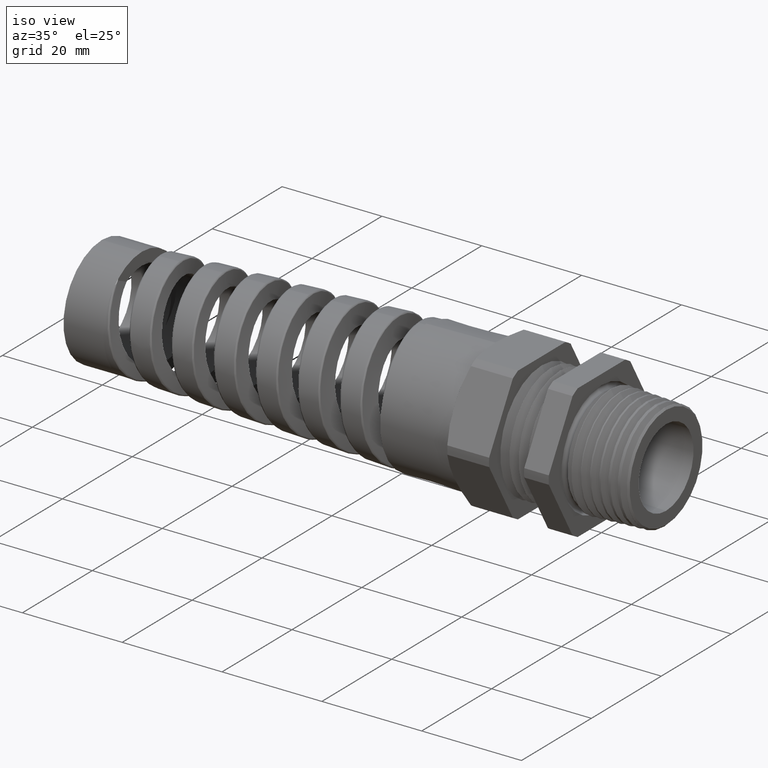
[diagram: clean part render]
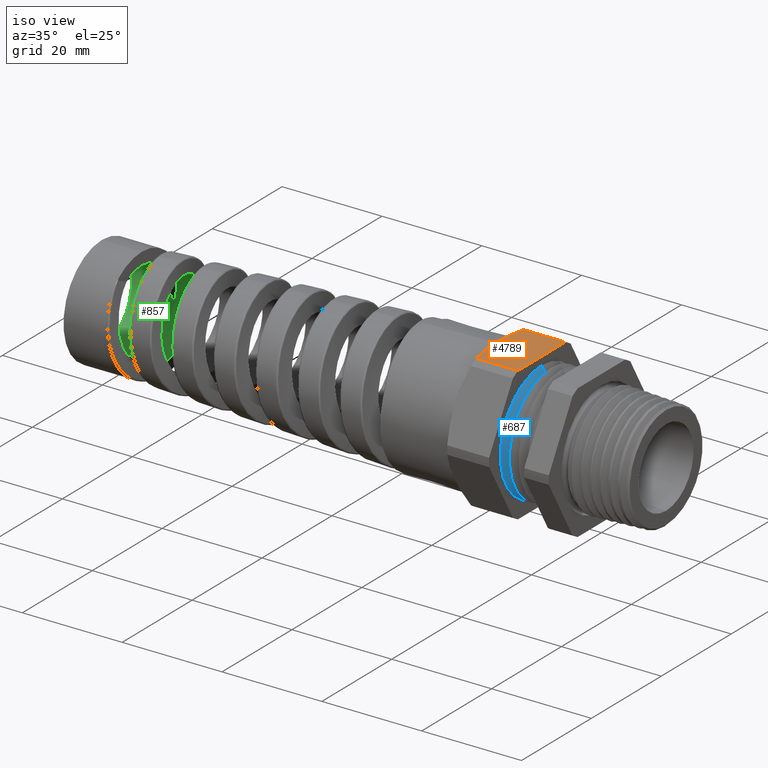
[diagram: same view with three faces highlighted in distinct colors, each labeled with its STEP entity id]
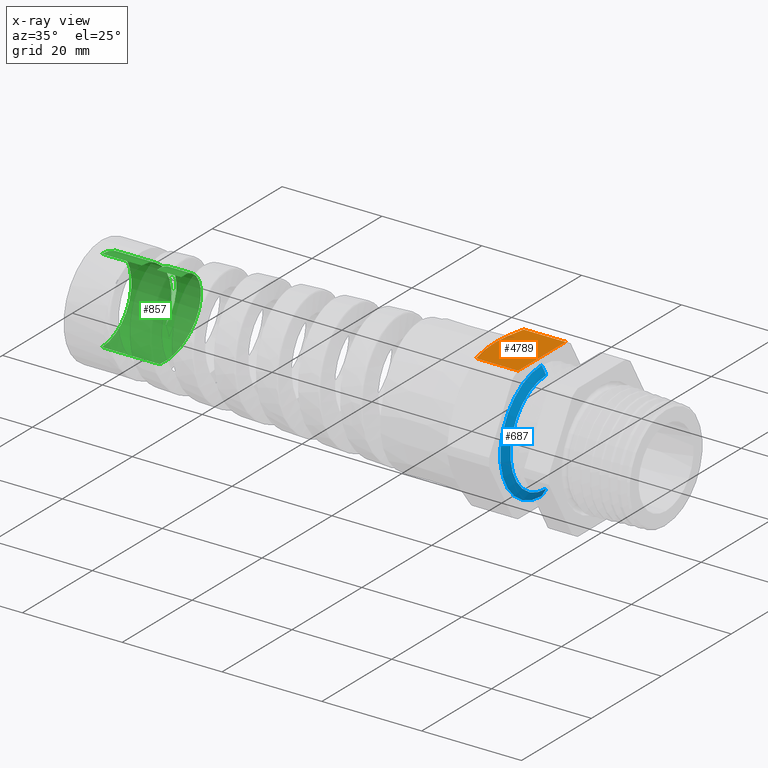
[diagram: x-ray of the same camera — body ghosted, the three highlighted faces saturated]
A machine part, iso view with three faces highlighted in distinct colors.
The next image is the same camera in x-ray (body ghosted, the three faces saturated) — at least one of them is partly hidden behind the body in this view.
Their STEP definitions:

[orange] entity #4789 — the highlighted planar face has unit normal (0, 0, 1).
#161 = CARTESIAN_POINT ( 'NONE',  ( -0.8375000000000000200, 0.0000000000000000000, 0.5299999999999999200 ) ) ;
#162 = CARTESIAN_POINT ( 'NONE',  ( -0.8375000000000001300, 0.02248601894749255700, 0.5300000000000001400 ) ) ;
#163 = CARTESIAN_POINT ( 'NONE',  ( -0.8366704751326139400, 0.04502350460591595500, 0.5300000000000000300 ) ) ;
#164 = CARTESIAN_POINT ( 'NONE',  ( -0.8333698439661926200, 0.09020032554817343500, 0.5300000000000000300 ) ) ;
#410 = ORIENTED_EDGE ( 'NONE', *, *, #411, .T. ) ;
#411 = EDGE_CURVE ( 'NONE', #4988, #1260, #2856, .T. ) ;
#412 = ORIENTED_EDGE ( 'NONE', *, *, #413, .T. ) ;
#413 = EDGE_CURVE ( 'NONE', #1260, #4813, #2900, .T. ) ;
#414 = ORIENTED_EDGE ( 'NONE', *, *, #5002, .T. ) ;
#415 = ORIENTED_EDGE ( 'NONE', *, *, #416, .T. ) ;
#416 = EDGE_CURVE ( 'NONE', #4999, #4987, #2899, .T. ) ;
#1260 = VERTEX_POINT ( 'NONE', #11885 ) ;
#2849 = CARTESIAN_POINT ( 'NONE',  ( -0.8308887136721119200, 0.1128690294926516700, 0.5300000000000001400 ) ) ;
#2850 = CARTESIAN_POINT ( 'NONE',  ( -0.8213051833091242800, 0.1800017858002748400, 0.5300000000000000300 ) ) ;
#2851 = CARTESIAN_POINT ( 'NONE',  ( -0.8120576945526086800, 0.2239487460126226800, 0.5300000000000000300 ) ) ;
#2852 = CARTESIAN_POINT ( 'NONE',  ( -0.8007805228795398200, 0.2673218285138722600, 0.5299999999999999200 ) ) ;
#2856 = B_SPLINE_CURVE_WITH_KNOTS ( 'NONE', 3,
 ( #2852, #2851, #2850, #2849, #164, #163, #162, #161 ),
 .UNSPECIFIED., .F., .F.,
 ( 4, 2, 2, 4 ),
 ( 0.007282999526850547600, 0.01069714918960657000, 0.01240422402098458100, 0.01411129885236259200 ),
 .UNSPECIFIED. ) ;
#2888 = DIRECTION ( 'NONE',  ( 0.0000000000000000000, 1.000000000000000000, 0.0000000000000000000 ) ) ;
#2889 = VECTOR ( 'NONE', #2888, 39.37007874015748100 ) ;
#2890 = CARTESIAN_POINT ( 'NONE',  ( -0.8007805228795398200, -0.2673218285138724300, 0.5299999999999999200 ) ) ;
#2891 = CARTESIAN_POINT ( 'NONE',  ( -0.8064647693670959900, -0.2454596720255573200, 0.5299999999999998000 ) ) ;
#2892 = CARTESIAN_POINT ( 'NONE',  ( -0.8116548691931352300, -0.2233522006217770200, 0.5299999999999999200 ) ) ;
#2893 = CARTESIAN_POINT ( 'NONE',  ( -0.8207557576897001100, -0.1789257074002588400, 0.5299999999999999200 ) ) ;
#2894 = CARTESIAN_POINT ( 'NONE',  ( -0.8246545637602134000, -0.1566720308095854700, 0.5299999999999999200 ) ) ;
#2895 = CARTESIAN_POINT ( 'NONE',  ( -0.8341465868220292500, -0.08977423242168816600, 0.5299999999999999200 ) ) ;
#2896 = CARTESIAN_POINT ( 'NONE',  ( -0.8375000000000000200, -0.04499114512754565100, 0.5300000000000000300 ) ) ;
#2897 = CARTESIAN_POINT ( 'NONE',  ( -0.8375000000000000200, 0.0000000000000000000, 0.5299999999999999200 ) ) ;
#2898 = CARTESIAN_POINT ( 'NONE',  ( -0.4708333333333333300, 0.4664000000000000400, 0.5299999999999999200 ) ) ;
#2899 = LINE ( 'NONE', #2898, #2889 ) ;
#2900 = B_SPLINE_CURVE_WITH_KNOTS ( 'NONE', 3,
 ( #2897, #2896, #2895, #2894, #2893, #2892, #2891, #2890 ),
 .UNSPECIFIED., .F., .F.,
 ( 4, 2, 2, 4 ),
 ( 0.01411129885236259200, 0.01752689908206323700, 0.01923469919691355900, 0.02094249931176388200 ),
 .UNSPECIFIED. ) ;
#4781 = EDGE_LOOP ( 'NONE', ( #4788, #410, #412, #414, #415 ) ) ;
#4788 = ORIENTED_EDGE ( 'NONE', *, *, #4994, .F. ) ;
#4789 = ADVANCED_FACE ( 'NONE', ( #12896 ), #12893, .T. ) ;
#4813 = VERTEX_POINT ( 'NONE', #12922 ) ;
#4987 = VERTEX_POINT ( 'NONE', #13014 ) ;
#4988 = VERTEX_POINT ( 'NONE', #13013 ) ;
#4994 = EDGE_CURVE ( 'NONE', #4988, #4987, #13011, .T. ) ;
#4999 = VERTEX_POINT ( 'NONE', #13052 ) ;
#5002 = EDGE_CURVE ( 'NONE', #4813, #4999, #13051, .T. ) ;
#11885 = CARTESIAN_POINT ( 'NONE',  ( -0.8375000000000000200, 0.0000000000000000000, 0.5299999999999999200 ) ) ;
#12882 = DIRECTION ( 'NONE',  ( 1.000000000000000000, 0.0000000000000000000, 0.0000000000000000000 ) ) ;
#12883 = DIRECTION ( 'NONE',  ( 0.0000000000000000000, 0.0000000000000000000, 1.000000000000000000 ) ) ;
#12892 = CARTESIAN_POINT ( 'NONE',  ( -2.533243884661831900, 0.2673218285138724300, 0.5299999999999999200 ) ) ;
#12893 = PLANE ( 'NONE',  #12895 ) ;
#12895 = AXIS2_PLACEMENT_3D ( 'NONE', #12892, #12883, #12882 ) ;
#12896 = FACE_OUTER_BOUND ( 'NONE', #4781, .T. ) ;
#12922 = CARTESIAN_POINT ( 'NONE',  ( -0.8007805228795398200, -0.2673218285138724300, 0.5299999999999999200 ) ) ;
#13003 = DIRECTION ( 'NONE',  ( 1.000000000000000000, 0.0000000000000000000, 0.0000000000000000000 ) ) ;
#13004 = VECTOR ( 'NONE', #13003, 39.37007874015748100 ) ;
#13005 = CARTESIAN_POINT ( 'NONE',  ( -2.533243884661831900, 0.2673218285138722600, 0.5299999999999999200 ) ) ;
#13011 = LINE ( 'NONE', #13005, #13004 ) ;
#13013 = CARTESIAN_POINT ( 'NONE',  ( -0.8007805228795398200, 0.2673218285138722600, 0.5299999999999999200 ) ) ;
#13014 = CARTESIAN_POINT ( 'NONE',  ( -0.4708333333333333300, 0.2673218285138722600, 0.5299999999999999200 ) ) ;
#13048 = DIRECTION ( 'NONE',  ( 1.000000000000000000, 0.0000000000000000000, 0.0000000000000000000 ) ) ;
#13049 = VECTOR ( 'NONE', #13048, 39.37007874015748100 ) ;
#13050 = CARTESIAN_POINT ( 'NONE',  ( -2.533243884661831900, -0.2673218285138724300, 0.5299999999999999200 ) ) ;
#13051 = LINE ( 'NONE', #13050, #13049 ) ;
#13052 = CARTESIAN_POINT ( 'NONE',  ( -0.4708333333333333300, -0.2673218285138724300, 0.5299999999999999200 ) ) ;

[blue] entity #687 — the highlighted conical surface has half-angle 60 deg.
#534 = EDGE_CURVE ( 'NONE', #1571, #1186, #3120, .T. ) ;
#632 = EDGE_CURVE ( 'NONE', #1516, #1515, #3187, .T. ) ;
#636 = EDGE_LOOP ( 'NONE', ( #688, #689, #690, #691 ) ) ;
#687 = ADVANCED_FACE ( 'NONE', ( #3350 ), #3349, .T. ) ;
#688 = ORIENTED_EDGE ( 'NONE', *, *, #1518, .F. ) ;
#689 = ORIENTED_EDGE ( 'NONE', *, *, #632, .F. ) ;
#690 = ORIENTED_EDGE ( 'NONE', *, *, #1573, .T. ) ;
#691 = ORIENTED_EDGE ( 'NONE', *, *, #534, .T. ) ;
#1186 = VERTEX_POINT ( 'NONE', #11649 ) ;
#1515 = VERTEX_POINT ( 'NONE', #12656 ) ;
#1516 = VERTEX_POINT ( 'NONE', #12655 ) ;
#1518 = EDGE_CURVE ( 'NONE', #1515, #1186, #12717, .T. ) ;
#1571 = VERTEX_POINT ( 'NONE', #12749 ) ;
#1573 = EDGE_CURVE ( 'NONE', #1516, #1571, #12810, .T. ) ;
#3116 = DIRECTION ( 'NONE',  ( 0.0000000000000000000, 0.0000000000000000000, -1.000000000000000000 ) ) ;
#3117 = DIRECTION ( 'NONE',  ( 1.000000000000000000, 0.0000000000000000000, 0.0000000000000000000 ) ) ;
#3118 = CARTESIAN_POINT ( 'NONE',  ( -0.4708333333333333300, 0.0000000000000000000, 0.0000000000000000000 ) ) ;
#3119 = AXIS2_PLACEMENT_3D ( 'NONE', #3118, #3117, #3116 ) ;
#3120 = CIRCLE ( 'NONE', #3119, 0.4664000000000000400 ) ;
#3187 = CIRCLE ( 'NONE', #3297, 0.4045410714285714900 ) ;
#3294 = DIRECTION ( 'NONE',  ( 0.0000000000000000000, 0.0000000000000000000, -1.000000000000000000 ) ) ;
#3295 = DIRECTION ( 'NONE',  ( 1.000000000000000000, 0.0000000000000000000, 0.0000000000000000000 ) ) ;
#3296 = CARTESIAN_POINT ( 'NONE',  ( -0.4351190642708378000, 0.0000000000000000000, 0.0000000000000000000 ) ) ;
#3297 = AXIS2_PLACEMENT_3D ( 'NONE', #3296, #3295, #3294 ) ;
#3344 = DIRECTION ( 'NONE',  ( 0.0000000000000000000, 0.0000000000000000000, 1.000000000000000000 ) ) ;
#3345 = DIRECTION ( 'NONE',  ( -1.000000000000000000, 0.0000000000000000000, 0.0000000000000000000 ) ) ;
#3346 = CARTESIAN_POINT ( 'NONE',  ( -0.4708333333333333300, 0.0000000000000000000, 0.0000000000000000000 ) ) ;
#3347 = AXIS2_PLACEMENT_3D ( 'NONE', #3346, #3345, #3344 ) ;
#3349 = CONICAL_SURFACE ( 'NONE', #3347, 0.4664000000000000400, 1.047197551196604500 ) ;
#3350 = FACE_OUTER_BOUND ( 'NONE', #636, .T. ) ;
#11649 = CARTESIAN_POINT ( 'NONE',  ( -0.4708333333333333300, 5.711752671223256000E-017, -0.4664000000000000400 ) ) ;
#12655 = CARTESIAN_POINT ( 'NONE',  ( -0.4351190642708378000, 5.332975976854832300E-017, 0.4045410714285714900 ) ) ;
#12656 = CARTESIAN_POINT ( 'NONE',  ( -0.4351190642708378000, 0.0000000000000000000, -0.4045410714285714900 ) ) ;
#12714 = DIRECTION ( 'NONE',  ( -0.4999999999999941200, 1.060575238724911100E-016, -0.8660254037844420400 ) ) ;
#12715 = VECTOR ( 'NONE', #12714, 39.37007874015748100 ) ;
#12716 = CARTESIAN_POINT ( 'NONE',  ( -0.4708333333333333300, 5.711752671223256000E-017, -0.4664000000000000400 ) ) ;
#12717 = LINE ( 'NONE', #12716, #12715 ) ;
#12749 = CARTESIAN_POINT ( 'NONE',  ( -0.4708333333333333300, 0.0000000000000000000, 0.4664000000000000400 ) ) ;
#12807 = DIRECTION ( 'NONE',  ( -0.4999999999999941200, 0.0000000000000000000, 0.8660254037844420400 ) ) ;
#12808 = VECTOR ( 'NONE', #12807, 39.37007874015748100 ) ;
#12809 = CARTESIAN_POINT ( 'NONE',  ( -0.4708333333333333300, 0.0000000000000000000, 0.4664000000000000400 ) ) ;
#12810 = LINE ( 'NONE', #12809, #12808 ) ;

[green] entity #857 — the highlighted cylindrical surface (partial cylindrical patch) has radius 8.4489 mm, axis along (1, 0, 0).
#150 = CARTESIAN_POINT ( 'NONE',  ( -3.383948641168031300, 0.3219489938800398400, 0.08647597331964004800 ) ) ;
#151 = CARTESIAN_POINT ( 'NONE',  ( -3.380405549248624000, 0.3156122105963049500, 0.1072615979921468600 ) ) ;
#152 = CARTESIAN_POINT ( 'NONE',  ( -3.375094547811985800, 0.3031732073658996400, 0.1372948727567915600 ) ) ;
#153 = CARTESIAN_POINT ( 'NONE',  ( -3.373323512750768100, 0.2985340101796965500, 0.1471155450342595500 ) ) ;
#154 = CARTESIAN_POINT ( 'NONE',  ( -3.369761914453740700, 0.2882501464236567100, 0.1663652364871906800 ) ) ;
#155 = CARTESIAN_POINT ( 'NONE',  ( -3.367964225090914500, 0.2825767353090256100, 0.1758291642440811000 ) ) ;
#156 = CARTESIAN_POINT ( 'NONE',  ( -3.362625654925855300, 0.2643821574943672800, 0.2030387032743613300 ) ) ;
#157 = CARTESIAN_POINT ( 'NONE',  ( -3.359108080068356800, 0.2506238158107058600, 0.2197865513007688800 ) ) ;
#165 = CARTESIAN_POINT ( 'NONE',  ( -3.455076508318698700, 0.1668289887649470600, -0.2885898465524239200 ) ) ;
#166 = CARTESIAN_POINT ( 'NONE',  ( -3.449771346605959600, 0.1938520334491973800, -0.2705277031349736000 ) ) ;
#167 = CARTESIAN_POINT ( 'NONE',  ( -3.448002398847984200, 0.2025738202217041700, -0.2640628718960128000 ) ) ;
#168 = CARTESIAN_POINT ( 'NONE',  ( -3.444445490478804200, 0.2194322198802942700, -0.2502296022288161800 ) ) ;
#169 = CARTESIAN_POINT ( 'NONE',  ( -3.442648519813332100, 0.2276056406652718400, -0.2428196371982734600 ) ) ;
#170 = CARTESIAN_POINT ( 'NONE',  ( -3.437304680492763200, 0.2507587713102599200, -0.2196439595799592500 ) ) ;
#171 = CARTESIAN_POINT ( 'NONE',  ( -3.433783040290113100, 0.2644979293758740200, -0.2028763098247451700 ) ) ;
#172 = CARTESIAN_POINT ( 'NONE',  ( -3.426682782364304900, 0.2886276930025860600, -0.1667693214120504200 ) ) ;
#173 = CARTESIAN_POINT ( 'NONE',  ( -3.423071605734311400, 0.2990683630830378000, -0.1472299162739240900 ) ) ;
#174 = CARTESIAN_POINT ( 'NONE',  ( -3.415962407389002900, 0.3156791909658300800, -0.1070755921503744300 ) ) ;
#175 = CARTESIAN_POINT ( 'NONE',  ( -3.412442093894254100, 0.3219755742450145500, -0.08633726780222469900 ) ) ;
#176 = CARTESIAN_POINT ( 'NONE',  ( -3.407103562814605800, 0.3283643175555833700, -0.05424315432612237400 ) ) ;
#177 = CARTESIAN_POINT ( 'NONE',  ( -3.405306274526156000, 0.3299821854012837100, -0.04332852962707259300 ) ) ;
#178 = CARTESIAN_POINT ( 'NONE',  ( -3.394670375380585400, 0.3326300908567581000, 0.02175809732716044900 ) ) ;
#179 = CARTESIAN_POINT ( 'NONE',  ( -3.401745763295546800, 0.3321128510374155600, -0.02160227621457475700 ) ) ;
#180 = CARTESIAN_POINT ( 'NONE',  ( -3.391138487564124800, 0.3305264560387665700, 0.04337638159646659000 ) ) ;
#181 = CARTESIAN_POINT ( 'NONE',  ( -3.399975942972513800, 0.3326383819035129700, -0.01075179983922135200 ) ) ;
#187 = CARTESIAN_POINT ( 'NONE',  ( -3.483565039913832300, 9.866922731616506700E-013, -0.3326356290387456100 ) ) ;
#189 = CARTESIAN_POINT ( 'NONE',  ( -3.481787368350142600, 0.01089960243973932400, -0.3326356290387132400 ) ) ;
#190 = CARTESIAN_POINT ( 'NONE',  ( -3.479990619161796900, 0.02191578194911456000, -0.3320926136535732300 ) ) ;
#191 = CARTESIAN_POINT ( 'NONE',  ( -3.476425454781758400, 0.04365830670850103000, -0.3299390213312894400 ) ) ;
#192 = CARTESIAN_POINT ( 'NONE',  ( -3.474653286242873000, 0.05440786973281659700, -0.3283347656878790000 ) ) ;
#193 = CARTESIAN_POINT ( 'NONE',  ( -3.469341366220644000, 0.08629578726506011200, -0.3219773137582953000 ) ) ;
#194 = CARTESIAN_POINT ( 'NONE',  ( -3.465805863022116500, 0.1070767329297460200, -0.3156940425236307600 ) ) ;
#195 = CARTESIAN_POINT ( 'NONE',  ( -3.458621244356935500, 0.1476272929445490400, -0.2988885036224787100 ) ) ;
#818 = VERTEX_POINT ( 'NONE', #3496 ) ;
#820 = EDGE_CURVE ( 'NONE', #818, #1092, #3551, .T. ) ;
#857 = ADVANCED_FACE ( 'NONE', ( #3601 ), #3598, .F. ) ;
#858 = EDGE_LOOP ( 'NONE', ( #859, #860, #924, #925, #926, #927, #928 ) ) ;
#859 = ORIENTED_EDGE ( 'NONE', *, *, #1079, .F. ) ;
#860 = ORIENTED_EDGE ( 'NONE', *, *, #861, .T. ) ;
#861 = EDGE_CURVE ( 'NONE', #1125, #1124, #3646, .T. ) ;
#873 = EDGE_CURVE ( 'NONE', #1096, #1085, #3635, .T. ) ;
#924 = ORIENTED_EDGE ( 'NONE', *, *, #1087, .T. ) ;
#925 = ORIENTED_EDGE ( 'NONE', *, *, #873, .F. ) ;
#926 = ORIENTED_EDGE ( 'NONE', *, *, #1095, .F. ) ;
#927 = ORIENTED_EDGE ( 'NONE', *, *, #820, .F. ) ;
#928 = ORIENTED_EDGE ( 'NONE', *, *, #929, .F. ) ;
#929 = EDGE_CURVE ( 'NONE', #1127, #818, #6137, .T. ) ;
#1079 = EDGE_CURVE ( 'NONE', #1125, #1127, #11009, .T. ) ;
#1085 = VERTEX_POINT ( 'NONE', #11071 ) ;
#1087 = EDGE_CURVE ( 'NONE', #1124, #1085, #11102, .T. ) ;
#1092 = VERTEX_POINT ( 'NONE', #11092 ) ;
#1095 = EDGE_CURVE ( 'NONE', #1092, #1096, #11118, .T. ) ;
#1096 = VERTEX_POINT ( 'NONE', #11114 ) ;
#1124 = VERTEX_POINT ( 'NONE', #11287 ) ;
#1125 = VERTEX_POINT ( 'NONE', #11286 ) ;
#1127 = VERTEX_POINT ( 'NONE', #11285 ) ;
#3496 = CARTESIAN_POINT ( 'NONE',  ( -3.624800000000000000, 0.2686459921528421800, -0.1961524728526637400 ) ) ;
#3528 = CARTESIAN_POINT ( 'NONE',  ( -3.560398040512243100, 0.2827278827962867400, 0.1779024037735309500 ) ) ;
#3529 = CARTESIAN_POINT ( 'NONE',  ( -3.567857102397326700, 0.3035251125336185200, 0.1369431728333820300 ) ) ;
#3530 = CARTESIAN_POINT ( 'NONE',  ( -3.570361546834222900, 0.3095495936322011400, 0.1227086170024781900 ) ) ;
#3531 = CARTESIAN_POINT ( 'NONE',  ( -3.575305612240963900, 0.3194664995187233600, 0.09391225313970083500 ) ) ;
#3532 = CARTESIAN_POINT ( 'NONE',  ( -3.577764822917159000, 0.3234162217421404100, 0.07924619645760999600 ) ) ;
#3533 = CARTESIAN_POINT ( 'NONE',  ( -3.582704780823446900, 0.3293006857953531500, 0.04938694638940089400 ) ) ;
#3534 = CARTESIAN_POINT ( 'NONE',  ( -3.585202544327633400, 0.3312395128146021800, 0.03408822482172634700 ) ) ;
#3535 = CARTESIAN_POINT ( 'NONE',  ( -3.590182844149498700, 0.3329708696028341700, 0.003467263630575202700 ) ) ;
#3536 = CARTESIAN_POINT ( 'NONE',  ( -3.592649507466559600, 0.3327745254082275500, -0.01175736722558141900 ) ) ;
#3537 = CARTESIAN_POINT ( 'NONE',  ( -3.597580079502184600, 0.3303185767821648100, -0.04203282380893914900 ) ) ;
#3544 = CARTESIAN_POINT ( 'NONE',  ( -3.600044259276090400, 0.3280589358048691100, -0.05708360207317415100 ) ) ;
#3545 = CARTESIAN_POINT ( 'NONE',  ( -3.605018382305359200, 0.3214224666810067100, -0.08699885573827295700 ) ) ;
#3546 = CARTESIAN_POINT ( 'NONE',  ( -3.607519652665492200, 0.3170383022276301300, -0.1018044314955741800 ) ) ;
#3547 = CARTESIAN_POINT ( 'NONE',  ( -3.614923345370607300, 0.3011323164038776100, -0.1445325302666838100 ) ) ;
#3548 = CARTESIAN_POINT ( 'NONE',  ( -3.619798076906619100, 0.2868155853971148300, -0.1712678087282063500 ) ) ;
#3549 = CARTESIAN_POINT ( 'NONE',  ( -3.624800000000000000, 0.2686459921528421800, -0.1961524728526637400 ) ) ;
#3551 = B_SPLINE_CURVE_WITH_KNOTS ( 'NONE', 3,
 ( #3549, #3548, #3547, #3546, #3545, #3544, #3537, #3536, #3535, #3534, #3533, #3532, #3531, #3530, #3529, #3528, #3596, #3595, #3594, #3593, #3592, #3591, #3590, #3589, #3588, #3587, #3586, #3585, #3584, #3583 ),
 .UNSPECIFIED., .F., .F.,
 ( 4, 2, 2, 2, 2, 2, 2, 2, 2, 2, 2, 2, 2, 2, 4 ),
 ( 8.953593353236380400E-017, 0.002337888064892850000, 0.003506832097339230100, 0.004675776129785610600, 0.005844720162231990300, 0.007013664194678370800, 0.008182608227124752200, 0.009351552259571132800, 0.01168944032446388700, 0.01285838435691026200, 0.01402732838935663800, 0.01519627242180301500, 0.01636521645424939000, 0.01753416048669576700, 0.01870310451914214100 ),
 .UNSPECIFIED. ) ;
#3583 = CARTESIAN_POINT ( 'NONE',  ( -3.505916521317923100, 5.908571030328017900E-013, 0.3326356290387458300 ) ) ;
#3584 = CARTESIAN_POINT ( 'NONE',  ( -3.508388289969139400, 0.01520852404908771200, 0.3326356290387178500 ) ) ;
#3585 = CARTESIAN_POINT ( 'NONE',  ( -3.510878311447875000, 0.03055612501603927700, 0.3315849165378103000 ) ) ;
#3586 = CARTESIAN_POINT ( 'NONE',  ( -3.515862798531214300, 0.06097381763225327000, 0.3273597825248713600 ) ) ;
#3587 = CARTESIAN_POINT ( 'NONE',  ( -3.518329943372475700, 0.07588301324879420700, 0.3242204771706613800 ) ) ;
#3588 = CARTESIAN_POINT ( 'NONE',  ( -3.523261832488075100, 0.1051139865573044700, 0.3159560085621395700 ) ) ;
#3589 = CARTESIAN_POINT ( 'NONE',  ( -3.525726436519821300, 0.1194357633140321100, 0.3108307615391881500 ) ) ;
#3590 = CARTESIAN_POINT ( 'NONE',  ( -3.530696132369827800, 0.1474717725117914400, 0.2985510679760961000 ) ) ;
#3591 = CARTESIAN_POINT ( 'NONE',  ( -3.533200741779434700, 0.1611760380502126100, 0.2913774133962558900 ) ) ;
#3592 = CARTESIAN_POINT ( 'NONE',  ( -3.538145754456587500, 0.1871330887446911500, 0.2754264318759687100 ) ) ;
#3593 = CARTESIAN_POINT ( 'NONE',  ( -3.540605489758902500, 0.1994981298100548300, 0.2666052924812690200 ) ) ;
#3594 = CARTESIAN_POINT ( 'NONE',  ( -3.545545561637613000, 0.2230000938494576300, 0.2472829228229589900 ) ) ;
#3595 = CARTESIAN_POINT ( 'NONE',  ( -3.548041395585943100, 0.2342013191500224900, 0.2367100858774460200 ) ) ;
#3596 = CARTESIAN_POINT ( 'NONE',  ( -3.555514953843073500, 0.2653986084089888200, 0.2028592717315154400 ) ) ;
#3598 = CYLINDRICAL_SURFACE ( 'NONE', #3599, 0.3326356290387456100 ) ;
#3599 = AXIS2_PLACEMENT_3D ( 'NONE', #3649, #3648, #3647 ) ;
#3601 = FACE_OUTER_BOUND ( 'NONE', #858, .T. ) ;
#3623 = CARTESIAN_POINT ( 'NONE',  ( -3.352012401241926100, 0.2199078594471999300, 0.2505173817074469700 ) ) ;
#3624 = CARTESIAN_POINT ( 'NONE',  ( -3.348405517729541100, 0.2027806688916536100, 0.2645714718353851000 ) ) ;
#3625 = CARTESIAN_POINT ( 'NONE',  ( -3.341296669024683500, 0.1666604879460706300, 0.2886907430848207300 ) ) ;
#3626 = CARTESIAN_POINT ( 'NONE',  ( -3.337768482185638200, 0.1475499223349122600, 0.2989183225465194000 ) ) ;
#3627 = CARTESIAN_POINT ( 'NONE',  ( -3.332419637064387300, 0.1172968321958149800, 0.3114596044755951200 ) ) ;
#3628 = CARTESIAN_POINT ( 'NONE',  ( -3.330619972169381000, 0.1069085794521890000, 0.3151760758886851800 ) ) ;
#3629 = CARTESIAN_POINT ( 'NONE',  ( -3.327057346710892800, 0.08603399710430828500, 0.3215020287888259400 ) ) ;
#3630 = CARTESIAN_POINT ( 'NONE',  ( -3.325285817009994800, 0.07550043780978424300, 0.3241350584902685200 ) ) ;
#3631 = CARTESIAN_POINT ( 'NONE',  ( -3.319975315656644300, 0.04362052677056443800, 0.3304743159976102400 ) ) ;
#3632 = CARTESIAN_POINT ( 'NONE',  ( -3.316435376215803600, 0.02195650486290947100, 0.3326356290387458800 ) ) ;
#3633 = CARTESIAN_POINT ( 'NONE',  ( -3.312849431311559700, -8.105905218700679900E-015, 0.3326356290387455000 ) ) ;
#3635 = B_SPLINE_CURVE_WITH_KNOTS ( 'NONE', 3,
 ( #3633, #3632, #3631, #3630, #3629, #3628, #3627, #3626, #3625, #3624, #3623, #157, #156, #155, #154, #153, #152, #151, #150, #180, #178, #181, #179, #177, #176, #175, #174, #173, #172, #171, #170, #169, #168, #167, #166, #165, #195, #194, #193, #192, #191, #190, #189, #187 ),
 .UNSPECIFIED., .F., .F.,
 ( 4, 2, 2, 2, 2, 2, 2, 2, 2, 2, 2, 2, 2, 2, 2, 2, 2, 2, 2, 2, 2, 4 ),
 ( 0.3436682690029260200, 0.3453410504182771700, 0.3461774411259527200, 0.3470138318336282700, 0.3486866132489794300, 0.3503593946643305300, 0.3520321760796816200, 0.3528685667873572300, 0.3537049574950327800, 0.3553777389103838800, 0.3570505203257350300, 0.3578869110334105800, 0.3587233017410861300, 0.3603960831564372900, 0.3620688645717883800, 0.3637416459871395400, 0.3645780366948150900, 0.3654144274024906400, 0.3670872088178417900, 0.3687599902331928900, 0.3695963809408685000, 0.3704327716485440500 ),
 .UNSPECIFIED. ) ;
#3642 = DIRECTION ( 'NONE',  ( 0.0000000000000000000, 0.0000000000000000000, 1.000000000000000000 ) ) ;
#3643 = DIRECTION ( 'NONE',  ( -1.000000000000000000, 0.0000000000000000000, 0.0000000000000000000 ) ) ;
#3644 = CARTESIAN_POINT ( 'NONE',  ( -3.939999999999999900, 0.0000000000000000000, 0.0000000000000000000 ) ) ;
#3645 = AXIS2_PLACEMENT_3D ( 'NONE', #3644, #3643, #3642 ) ;
#3646 = CIRCLE ( 'NONE', #3645, 0.3326356290387425000 ) ;
#3647 = DIRECTION ( 'NONE',  ( 0.0000000000000000000, 0.0000000000000000000, -1.000000000000000000 ) ) ;
#3648 = DIRECTION ( 'NONE',  ( 1.000000000000000000, 0.0000000000000000000, 0.0000000000000000000 ) ) ;
#3649 = CARTESIAN_POINT ( 'NONE',  ( 0.4924815508901369000, 0.0000000000000000000, 0.0000000000000000000 ) ) ;
#6133 = DIRECTION ( 'NONE',  ( 0.0000000000000000000, 0.0000000000000000000, 1.000000000000000000 ) ) ;
#6134 = DIRECTION ( 'NONE',  ( -1.000000000000000000, 0.0000000000000000000, 0.0000000000000000000 ) ) ;
#6135 = CARTESIAN_POINT ( 'NONE',  ( -3.624800000000000000, 0.0000000000000000000, 0.0000000000000000000 ) ) ;
#6136 = AXIS2_PLACEMENT_3D ( 'NONE', #6135, #6134, #6133 ) ;
#6137 = CIRCLE ( 'NONE', #6136, 0.3326356290387425000 ) ;
#11003 = DIRECTION ( 'NONE',  ( 1.000000000000000000, 0.0000000000000000000, 0.0000000000000000000 ) ) ;
#11004 = CARTESIAN_POINT ( 'NONE',  ( 0.4924815508901369000, 4.073611583846661800E-017, 0.3326356290387456100 ) ) ;
#11009 = LINE ( 'NONE', #11004, #11078 ) ;
#11071 = CARTESIAN_POINT ( 'NONE',  ( -3.483565039913832300, 9.866922731616506700E-013, -0.3326356290387456100 ) ) ;
#11078 = VECTOR ( 'NONE', #11003, 39.37007874015748100 ) ;
#11092 = CARTESIAN_POINT ( 'NONE',  ( -3.505916521317923100, 5.908571030328017900E-013, 0.3326356290387458300 ) ) ;
#11099 = DIRECTION ( 'NONE',  ( 1.000000000000000000, 0.0000000000000000000, 0.0000000000000000000 ) ) ;
#11100 = VECTOR ( 'NONE', #11099, 39.37007874015748100 ) ;
#11101 = CARTESIAN_POINT ( 'NONE',  ( 0.4924815508901369000, 0.0000000000000000000, -0.3326356290387456100 ) ) ;
#11102 = LINE ( 'NONE', #11101, #11100 ) ;
#11114 = CARTESIAN_POINT ( 'NONE',  ( -3.312849431311559700, -8.105905218700679900E-015, 0.3326356290387455000 ) ) ;
#11115 = DIRECTION ( 'NONE',  ( 1.000000000000000000, 0.0000000000000000000, 0.0000000000000000000 ) ) ;
#11116 = VECTOR ( 'NONE', #11115, 39.37007874015748100 ) ;
#11117 = CARTESIAN_POINT ( 'NONE',  ( 0.4924815508901369000, 4.073611583846661800E-017, 0.3326356290387456100 ) ) ;
#11118 = LINE ( 'NONE', #11117, #11116 ) ;
#11285 = CARTESIAN_POINT ( 'NONE',  ( -3.624800000000000000, 4.073611583846642100E-017, 0.3326356290387425000 ) ) ;
#11286 = CARTESIAN_POINT ( 'NONE',  ( -3.939999999999999900, 4.073611583846642100E-017, 0.3326356290387425000 ) ) ;
#11287 = CARTESIAN_POINT ( 'NONE',  ( -3.939999999999999900, 0.0000000000000000000, -0.3326356290387425000 ) ) ;